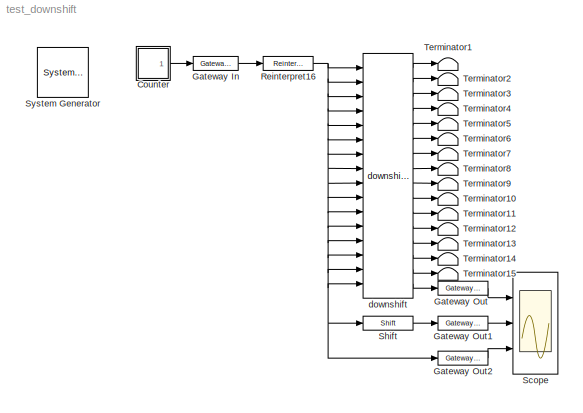
MODEL test_downshift
KIND model
BLOCK [Reference]  System Generator  REF=xbsIndex_r4/ System Generator
  AttributesFormatString = System\\nGenerator
  FunctionWithSeparateData = off
  Ports = []
  RTWMemSecDataConstants = Inherit from model
  RTWMemSecDataInternal = Inherit from model
  RTWMemSecDataParameters = Inherit from model
  RTWMemSecFuncExecute = Inherit from model
  RTWMemSecFuncInitTerm = Inherit from model
  ShowPortLabels = FromPortIcon
  SourceBlock = xbsIndex_r4/ System Generator
  SourceType = Xilinx System Generator Block
  SystemSampleTime = -1
  Tag = genX
  UserData = DataTag0
  UserDataPersistent = on
  block_type = sysgen
  block_version = 11.3
  clock_wrapper = Clock Enables
  core_generation = According to Block Masks
  dbl_ovrd = According to Block Masks
  dcm_input_clock_period = 10
  deprecated_control = off
  directory = ./netlist
  eval_field = 0
  has_advanced_control = 0
  incr_netlist = off
  infoedit = System Generator
  package = ff1156
  part = xc6vsx315t
  run_coregen = off
  sg_icon_stat = 51,50,-1,-1,red,beige,0,07734,right,
  sg_mask_display = fprintf('','COMMENT: begin icon graphics');\npatch([0 1 1 0 ],[0 0 1 1 ],[0.93 0.92 0.86]);\npatch([0.235294 0.0784314 0.313725 0.0784314 0.235294 0.490196 0.568627 0.647059 0.921569 0.705882 0.490196 0.333333 0.568627 0.333333 0.490196 0.705882 0.921569 0.647059 0.568627 0.490196 0.235294 ],[0.1 0.26 0.5 0.74 0.9 0.9 0.82 0.9 0.9 0.68 0.9 0.74 0.5 0.26 0.1 0.32 0.1 0.1 0.18 0.1 0.1 ],[0.6 0.2 0.2...<+163ch>
  sggui_pos = -1,-1,-1,-1
  simulink_period = 1
  speed = -3
  synthesis_tool = XST
  sysclk_period = 10
  testbench = off
  trim_vbits = Everywhere in SubSystem
  xilinxfamily = Virtex6
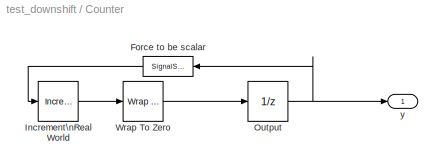
BLOCK [SubSystem] Counter
  AncestorBlock = simulink/Sources/Counter\nFree-Running
  FunctionWithSeparateData = off
  MaskCallbackString = |
  MaskCapabilities = slmaskedcaps(gcbh)
  MaskDescription = This block is a free-running counter that overflows back to zero after it has reached the maximum value possible for the specified number of bits. The count is always initialized to zero.  The output is normally an unsigned integer with the specified number of bits.
  MaskDisplay = plot( 0.05+0.9/8*[0 1 1 2 2 3 3 4 4 5 5 6 6 7 7 8 8], 0.3+0.65/3*[0 0 1 1 2 2 3 3 0 0 1 1 2 2 3 3 0] )
  MaskEnableString = on,on
  MaskHideContents = off
  MaskIconFrame = on
  MaskIconOpaque = on
  MaskIconRotate = none
  MaskIconUnits = normalized
  MaskPortRotate = default
  MaskPromptString = Number of Bits|Sample time:
  MaskSelfModifiable = on
  MaskStyleString = edit,edit
  MaskTabNameString = ,
  MaskToolTipString = on,on
  MaskTunableValueString = off,off
  MaskType = Counter Free-Running
  MaskValueString = 8|1
  MaskVarAliasString = ,
  MaskVariables = NumBits=@1;tsamp=@2;
  MaskVisibilityString = on,on
  MinAlgLoopOccurrences = off
  Opaque = off
  Ports = [0, 1]
  PropExecContextOutsideSubsystem = off
  RTWSystemCode = Auto
  RequestExecContextInheritance = off
BLOCK [SignalSpecification] Counter/Force to be scalar
  Dimensions = 1
  DisableCoverage = on
  OutDataType = fixdt(1, 16)
  OutScaling = 2^0
BLOCK [Reference] Counter/Increment\nReal World  REF=simulink/Additional Math\n& Discrete/Additional Math:\nIncrement - Decrement/Increment\nReal World
  DisableCoverage = on
  FunctionWithSeparateData = off
  Ports = [1, 1]
  RTWMemSecDataConstants = Inherit from model
  RTWMemSecDataInternal = Inherit from model
  RTWMemSecDataParameters = Inherit from model
  RTWMemSecFuncExecute = Inherit from model
  RTWMemSecFuncInitTerm = Inherit from model
  ShowPortLabels = FromPortIcon
  SourceBlock = simulink/Additional Math\n& Discrete/Additional Math:\nIncrement - Decrement/Increment\nReal World
  SourceType = Real World Value Increment
  SystemSampleTime = -1
BLOCK [UnitDelay] Counter/Output
  SampleTime = tsamp
  X0 = 0.0
BLOCK [Reference] Counter/Wrap To Zero  REF=simulink/Discontinuities/Wrap To Zero
  DisableCoverage = on
  FunctionWithSeparateData = off
  Ports = [1, 1]
  RTWMemSecDataConstants = Inherit from model
  RTWMemSecDataInternal = Inherit from model
  RTWMemSecDataParameters = Inherit from model
  RTWMemSecFuncExecute = Inherit from model
  RTWMemSecFuncInitTerm = Inherit from model
  ShowPortLabels = FromPortIcon
  SourceBlock = simulink/Discontinuities/Wrap To Zero
  SourceType = Wrap To Zero
  SystemSampleTime = -1
  Threshold = (2^(NumBits))-1
BLOCK [Outport] Counter/y
  IconDisplay = Port number
  OutDataType = fixdt(1, 16)
  OutScaling = 2^0
BLOCK [Reference] Gateway In  REF=xbsIndex_r4/Gateway In
  LOCs = {}
  Ports = [1, 1]
  SourceBlock = xbsIndex_r4/Gateway In
  SourceType = Xilinx Gateway In Block
  arith_type = Unsigned
  bin_pt = 0
  block_type = gatewayin
  block_version = 11.3
  dbl_ovrd = off
  has_advanced_control = 0
  infoedit = Gateway in block.  Converts inputs of type Simulink integer, double and fixed point to  Xilinx fixed point type.<br><br>Hardware notes:  In hardware these blocks become top level input ports.
  locs_specified = off
  n_bits = 8
  overflow = Saturate
  period = 1
  quantization = Round  (unbiased: +/- Inf)
  sg_icon_stat = 45,14,1,1,white,yellow,0,00d3666e,right,
  sg_mask_display = fprintf('','COMMENT: begin icon graphics');\npatch([0 1 1 0 ],[0 0 1 1 ],[0.95 0.93 0.65]);\npatch([0.4 0.355556 0.422222 0.355556 0.4 0.488889 0.511111 0.533333 0.622222 0.555556 0.488889 0.444444 0.511111 0.444444 0.488889 0.555556 0.622222 0.533333 0.511111 0.488889 0.4 ],[0.142857 0.285714 0.5 0.714286 0.857143 0.857143 0.785714 0.857143 0.857143 0.642857 0.857143 0.714286 0.5 0.285714 0.14285...<+360ch>
  sggui_pos = 20,20,543,611
  timing_constraint = None
  xl_area = [0,0,0,0,0,0,0]
  xl_use_area = off
BLOCK [Reference] Gateway Out  REF=xbsIndex_r4/Gateway Out
  LOCs = {}
  Ports = [1, 1]
  SourceBlock = xbsIndex_r4/Gateway Out
  SourceType = Xilinx Gateway Out Block
  block_type = gatewayout
  block_version = 11.3
  has_advanced_control = 0
  hdl_port = on
  infoedit = Gateway out block.  Converts Xilinx fixed point inputs into ouputs of type Simulink integer, double, or fixed point.<br><br>Hardware notes:  In hardware these blocks become top level output ports or are discarded, depending on how they are configured.  <repeated x3 — deduplicated; at blocks: Gateway Out, Gateway Out1, Gateway Out2>
  locs_specified = off
  sg_icon_stat = 50,14,1,1,white,yellow,0,cc31b7ac,right,
  sg_mask_display = fprintf('','COMMENT: begin icon graphics');\npatch([0 1 1 0 ],[0 0 1 1 ],[0.95 0.93 0.65]);\npatch([0.42 0.38 0.44 0.38 0.42 0.5 0.52 0.54 0.62 0.56 0.5 0.46 0.52 0.46 0.5 0.56 0.62 0.54 0.52 0.5 0.42 ],[0.142857 0.285714 0.5 0.714286 0.857143 0.857143 0.785714 0.857143 0.857143 0.642857 0.857143 0.714286 0.5 0.285714 0.142857 0.357143 0.142857 0.142857 0.214286 0.142857 0.142857 ],[0.98 0.96 0.92...<+288ch>  <repeated x3 — deduplicated; at blocks: Gateway Out, Gateway Out1, Gateway Out2>
  sggui_pos = -1,-1,-1,-1
  timing_constraint = None
  xl_area = [0,0,0,0,0,0,0]
  xl_use_area = off
BLOCK [Reference] Gateway Out1  REF=xbsIndex_r4/Gateway Out
  LOCs = {}
  Ports = [1, 1]
  SourceBlock = xbsIndex_r4/Gateway Out
  SourceType = Xilinx Gateway Out Block
  block_type = gatewayout
  block_version = 11.3
  has_advanced_control = 0
  hdl_port = on
  locs_specified = off
  sg_icon_stat = 50,14,1,1,white,yellow,0,cc31b7ac,right,
  sggui_pos = 20,20,527,581
  timing_constraint = None
  xl_area = [0,0,0,0,0,0,0]
  xl_use_area = off
BLOCK [Reference] Gateway Out2  REF=xbsIndex_r4/Gateway Out
  LOCs = {}
  Ports = [1, 1]
  SourceBlock = xbsIndex_r4/Gateway Out
  SourceType = Xilinx Gateway Out Block
  block_type = gatewayout
  block_version = 11.3
  has_advanced_control = 0
  hdl_port = on
  locs_specified = off
  sg_icon_stat = 50,14,1,1,white,yellow,0,cc31b7ac,right,
  sggui_pos = 20,20,527,581
  timing_constraint = None
  xl_area = [0,0,0,0,0,0,0]
  xl_use_area = off
BLOCK [Reference] Reinterpret16  REF=xbsIndex_r4/Reinterpret
  Ports = [1, 1]
  SourceBlock = xbsIndex_r4/Reinterpret
  SourceType = Xilinx Type Reinterpreter Block
  arith_type = Signed  (2's comp)
  bin_pt = 7
  block_type = reinterpret
  block_version = 11.3
  force_arith_type = on
  force_bin_pt = on
  has_advanced_control = 0
  infoedit = Changes signal type without altering the binary representation.   You can changed the signal between signed and unsigned, and relocate the binary point.<br><br>Hardware notes: In hardware this block costs nothing.<br><br>Example:  Suppose the input is 6 bits wide, signed, with 2 fractional bits, and the output is forced to unsigned with 0 fractional bits.  Then an input of -2.0 (1110.00 in binary ...<+59ch>
  sg_icon_stat = 50,14,1,1,white,blue,0,6b04d0b0,right,
  sg_mask_display = fprintf('','COMMENT: begin icon graphics');\npatch([0 1 1 0 ],[0 0 1 1 ],[0.77 0.82 0.91]);\npatch([0.42 0.38 0.44 0.38 0.42 0.5 0.52 0.54 0.62 0.56 0.5 0.46 0.52 0.46 0.5 0.56 0.62 0.54 0.52 0.5 0.42 ],[0.142857 0.285714 0.5 0.714286 0.857143 0.857143 0.785714 0.857143 0.857143 0.642857 0.857143 0.714286 0.5 0.285714 0.142857 0.357143 0.142857 0.142857 0.214286 0.142857 0.142857 ],[0.98 0.96 0.92...<+199ch>
  sggui_pos = 20,20,489,477
BLOCK [Scope] Scope
  DataFormat = StructureWithTime
  Floating = off
  NumInputPorts = 3
  Ports = [3]
  SampleTime = 0
  YMax = 5~5~5
  YMin = -5~-5~-5
  ZoomMode = yonly
BLOCK [Reference] Shift  REF=xbsIndex_r4/Shift
  Ports = [1, 1]
  SourceBlock = xbsIndex_r4/Shift
  SourceType = Xilinx Binary Shift Operator Block
  arith_type = Signed  (2's comp)
  bin_pt = 14
  block_type = shift
  block_version = 11.3
  dbl_ovrd = off
  en = off
  has_advanced_control = 0
  infoedit = Hardware notes: In hardware this block costs nothing if full output precision is used.
  latency = 0
  n_bits = 16
  overflow = Wrap
  precision = Full
  quantization = Truncate
  sg_icon_stat = 50,14,1,1,white,blue,0,30693d63,right,
  sg_mask_display = fprintf('','COMMENT: begin icon graphics');\npatch([0 1 1 0 ],[0 0 1 1 ],[0.77 0.82 0.91]);\npatch([0.42 0.38 0.44 0.38 0.42 0.5 0.52 0.54 0.62 0.56 0.5 0.46 0.52 0.46 0.5 0.56 0.62 0.54 0.52 0.5 0.42 ],[0.142857 0.285714 0.5 0.714286 0.857143 0.857143 0.785714 0.857143 0.857143 0.642857 0.857143 0.714286 0.5 0.285714 0.142857 0.357143 0.142857 0.142857 0.214286 0.142857 0.142857 ],[0.98 0.96 0.92...<+239ch>
  sggui_pos = 20,20,543,542
  shift_bits = 1
  shift_dir = Right
  xl_area = [0,0,0,0,0,0,0]
  xl_use_area = off
BLOCK [Terminator] Terminator1
BLOCK [Terminator] Terminator10
BLOCK [Terminator] Terminator11
BLOCK [Terminator] Terminator12
BLOCK [Terminator] Terminator13
BLOCK [Terminator] Terminator14
BLOCK [Terminator] Terminator15
BLOCK [Terminator] Terminator2
BLOCK [Terminator] Terminator3
BLOCK [Terminator] Terminator4
BLOCK [Terminator] Terminator5
BLOCK [Terminator] Terminator6
BLOCK [Terminator] Terminator7
BLOCK [Terminator] Terminator8
BLOCK [Terminator] Terminator9
BLOCK [Reference] downshift  REF=isi_correlator_lib/downshift  (lib defined in mdl_4b72aa53f299)
  FunctionWithSeparateData = off
  Ports = [16, 16]
  RTWMemSecDataConstants = Inherit from model
  RTWMemSecDataInternal = Inherit from model
  RTWMemSecDataParameters = Inherit from model
  RTWMemSecFuncExecute = Inherit from model
  RTWMemSecFuncInitTerm = Inherit from model
  ShowPortLabels = FromPortIcon
  SourceBlock = isi_correlator_lib/downshift
  SystemSampleTime = -1
  bit_width = 8
LINE Counter/Force to be scalar:1 -> Counter/Increment\nReal World:1
LINE Counter/Increment\nReal World:1 -> Counter/Wrap To Zero:1
NET Counter/Output:1 -> Counter/Force to be scalar:1, Counter/y:1
LINE Counter/Wrap To Zero:1 -> Counter/Output:1
LINE Counter:1 -> Gateway In:1
LINE Gateway In:1 -> Reinterpret16:1
LINE Gateway Out1:1 -> Scope:2
LINE Gateway Out2:1 -> Scope:3
LINE Gateway Out:1 -> Scope:1
NET Reinterpret16:1 -> Gateway Out2:1, Shift:1, downshift:1, downshift:10, downshift:11, downshift:12, downshift:13, downshift:14, downshift:15, downshift:16, downshift:2, downshift:3, downshift:4, downshift:5, downshift:6, downshift:7, downshift:8, downshift:9
LINE Shift:1 -> Gateway Out1:1
LINE downshift:1 -> Terminator1:1
LINE downshift:10 -> Terminator10:1
LINE downshift:11 -> Terminator11:1
LINE downshift:12 -> Terminator12:1
LINE downshift:13 -> Terminator13:1
LINE downshift:14 -> Terminator14:1
LINE downshift:15 -> Terminator15:1
LINE downshift:16 -> Gateway Out:1
LINE downshift:2 -> Terminator2:1
LINE downshift:3 -> Terminator3:1
LINE downshift:4 -> Terminator4:1
LINE downshift:5 -> Terminator5:1
LINE downshift:6 -> Terminator6:1
LINE downshift:7 -> Terminator7:1
LINE downshift:8 -> Terminator8:1
LINE downshift:9 -> Terminator9:1
note: NET lines group one-source signal fan-out (src -> all destinations, sorted); 1:1 wires keep LINE
